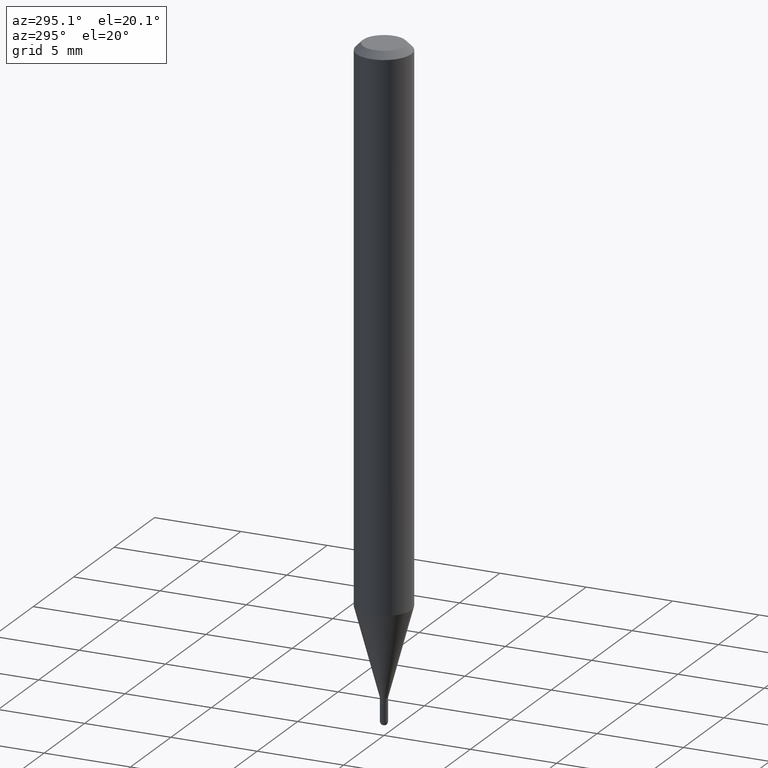
[diagram: clean part render]
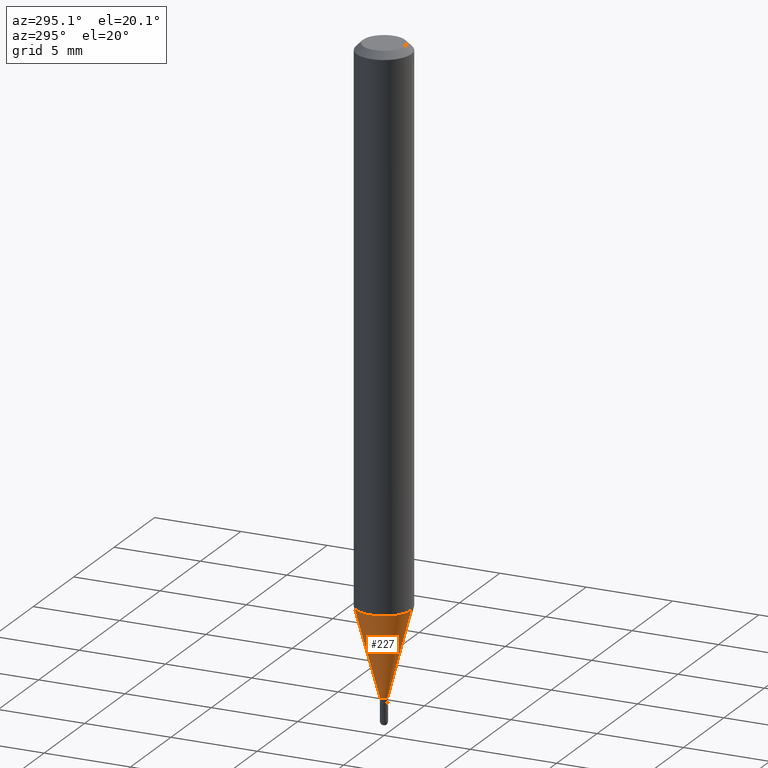
[diagram: same view with one face highlighted and labeled with its STEP entity id]
A machine part, auxiliary view. The second image highlights one B-rep face of the part: STEP entity #227.
In plain terms, the highlighted conical surface has half-angle 15 deg.
Its self-contained STEP definition (entity closure, byte-faithful):
#3 = EDGE_CURVE ( 'NONE', #413, #62, #56, .T. ) ;
#13 = CARTESIAN_POINT ( 'NONE',  ( -5.935518276029754545E-17, -0.008500000000004949777, -1.439000000000000057 ) ) ;
#20 = DIRECTION ( 'NONE',  ( 1.839019923739601893E-15, 0.2588190451025252359, 0.9659258262890670910 ) ) ;
#41 = AXIS2_PLACEMENT_3D ( 'NONE', #415, #426, #383 ) ;
#50 = AXIS2_PLACEMENT_3D ( 'NONE', #503, #65, #460 ) ;
#56 = CIRCLE ( 'NONE', #41, 0.008499999999999924283 ) ;
#57 = ORIENTED_EDGE ( 'NONE', *, *, #478, .F. ) ;
#62 = VERTEX_POINT ( 'NONE', #90 ) ;
#65 = DIRECTION ( 'NONE',  ( -2.445466221238004256E-29, 3.491485040634565202E-15, 1.000000000000000000 ) ) ;
#68 = CARTESIAN_POINT ( 'NONE',  ( 6.039613253964316839E-17, 0.008499999999994900524, -1.439000000000000057 ) ) ;
#90 = CARTESIAN_POINT ( 'NONE',  ( -5.935518276029754545E-17, -0.008500000000004949777, -1.439000000000000057 ) ) ;
#129 = CARTESIAN_POINT ( 'NONE',  ( 4.440892098500927901E-16, 0.06249999999999569095, -1.237469256391281691 ) ) ;
#156 = DIRECTION ( 'NONE',  ( -6.982962677686266711E-15, -1.000000000000000000, 0.000000000000000000 ) ) ;
#177 = EDGE_LOOP ( 'NONE', ( #258, #210, #367, #57 ) ) ;
#194 = FACE_OUTER_BOUND ( 'NONE', #177, .T. ) ;
#203 = DIRECTION ( 'NONE',  ( -1.807323732225331717E-15, -0.2588190451025184080, 0.9659258262890689783 ) ) ;
#210 = ORIENTED_EDGE ( 'NONE', *, *, #3, .T. ) ;
#227 = ADVANCED_FACE ( 'NONE', ( #194 ), #243, .T. ) ;
#242 = AXIS2_PLACEMENT_3D ( 'NONE', #351, #275, #156 ) ;
#243 = CONICAL_SURFACE ( 'NONE', #242, 0.008499999999999924283, 0.2617993877991505181 ) ;
#258 = ORIENTED_EDGE ( 'NONE', *, *, #463, .F. ) ;
#275 = DIRECTION ( 'NONE',  ( -2.445466221238004256E-29, 3.491485040634565202E-15, 1.000000000000000000 ) ) ;
#283 = EDGE_CURVE ( 'NONE', #62, #489, #296, .T. ) ;
#290 = VERTEX_POINT ( 'NONE', #129 ) ;
#296 = LINE ( 'NONE', #13, #362 ) ;
#351 = CARTESIAN_POINT ( 'NONE',  ( 3.519025892361488226E-29, -5.024246973473140091E-15, -1.439000000000000057 ) ) ;
#362 = VECTOR ( 'NONE', #203, 39.37007874015748854 ) ;
#367 = ORIENTED_EDGE ( 'NONE', *, *, #283, .T. ) ;
#382 = LINE ( 'NONE', #68, #395 ) ;
#383 = DIRECTION ( 'NONE',  ( -6.982962677686266711E-15, -1.000000000000000000, 0.000000000000000000 ) ) ;
#395 = VECTOR ( 'NONE', #20, 39.37007874015748854 ) ;
#413 = VERTEX_POINT ( 'NONE', #422 ) ;
#415 = CARTESIAN_POINT ( 'NONE',  ( 3.519025892361488226E-29, -5.024246973473140091E-15, -1.439000000000000057 ) ) ;
#422 = CARTESIAN_POINT ( 'NONE',  ( 2.522426711948681826E-16, 0.008499999999994900524, -1.439000000000000057 ) ) ;
#426 = DIRECTION ( 'NONE',  ( -2.445466221238004256E-29, 3.491485040634565202E-15, 1.000000000000000000 ) ) ;
#455 = CARTESIAN_POINT ( 'NONE',  ( -4.364351673553615448E-16, -0.06250000000000432987, -1.237469256391281025 ) ) ;
#460 = DIRECTION ( 'NONE',  ( -6.982962677686265922E-15, -1.000000000000000000, 4.370956789862821150E-15 ) ) ;
#463 = EDGE_CURVE ( 'NONE', #413, #290, #382, .T. ) ;
#467 = CIRCLE ( 'NONE', #50, 0.06250000000000000000 ) ;
#478 = EDGE_CURVE ( 'NONE', #290, #489, #467, .T. ) ;
#489 = VERTEX_POINT ( 'NONE', #455 ) ;
#503 = CARTESIAN_POINT ( 'NONE',  ( 3.026189266325389991E-29, -4.320605396935337558E-15, -1.237469256391281247 ) ) ;